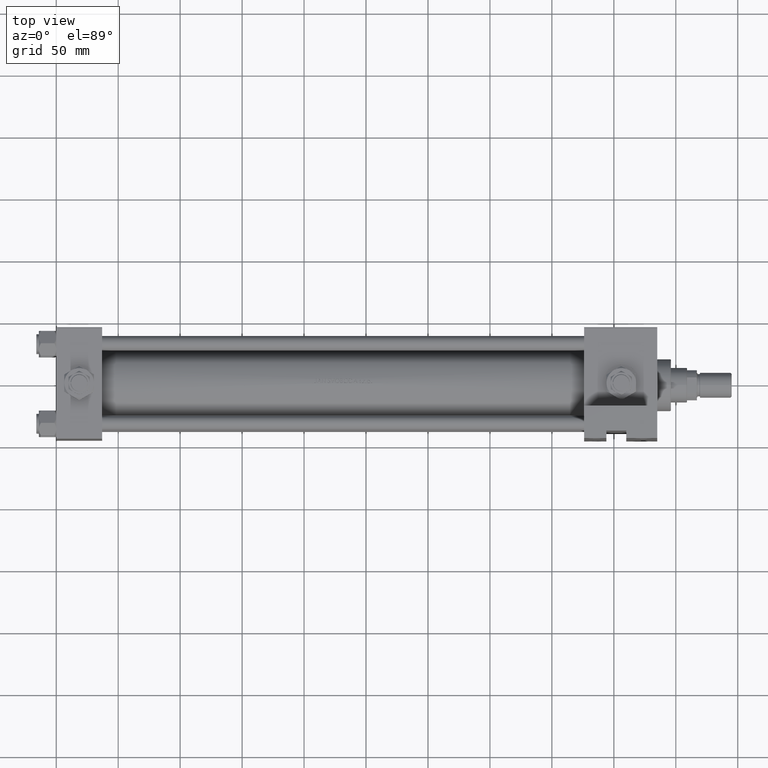
[diagram: clean part render]
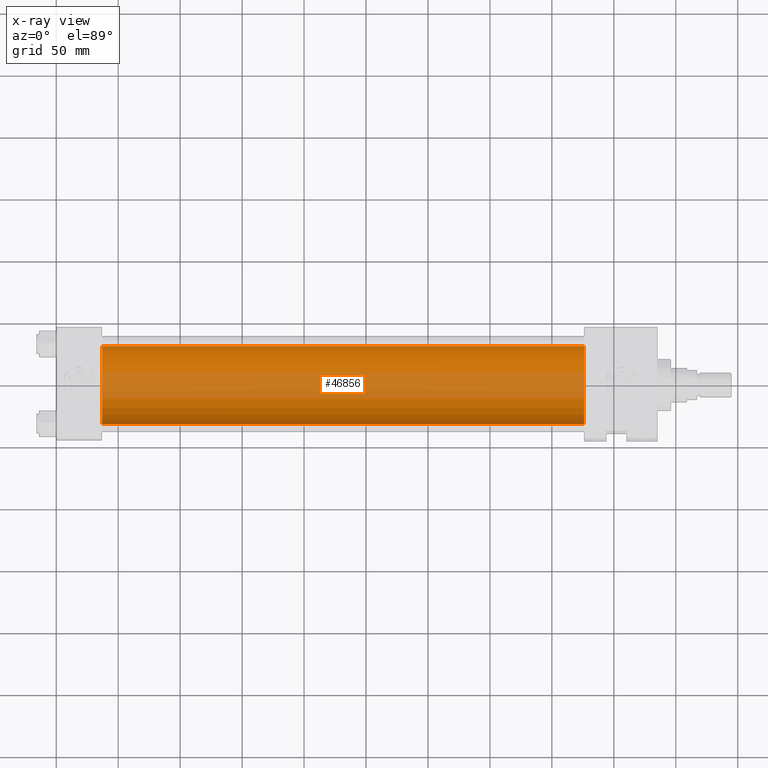
[diagram: x-ray — body ghosted, one internal face saturated and labeled with its STEP entity id]
A machine part, top view, then the same camera in x-ray: the body is ghosted and one INTERNAL B-rep face — a face not visible from any outside direction — is saturated and labeled: STEP entity #46856.
In plain terms, the highlighted cylindrical surface (partial cylindrical patch) has radius 31.5 mm, axis along (-1, -0, 0).
Its self-contained STEP definition (entity closure, byte-faithful):
#881 = EDGE_CURVE ( 'NONE', #21066, #12275, #8710, .T. ) ;
#3938 = DIRECTION ( 'NONE',  ( 0.000000000000000000, 0.000000000000000000, -1.000000000000000000 ) ) ;
#4906 = DIRECTION ( 'NONE',  ( -1.000000000000000000, -0.000000000000000000, -0.000000000000000000 ) ) ;
#5948 = AXIS2_PLACEMENT_3D ( 'NONE', #11804, #31841, #3938 ) ;
#6396 = VERTEX_POINT ( 'NONE', #46954 ) ;
#8710 = LINE ( 'NONE', #36865, #46939 ) ;
#11804 = CARTESIAN_POINT ( 'NONE',  ( 37.00000000000000000, 0.000000000000000000, -1.000000000000007772 ) ) ;
#12275 = VERTEX_POINT ( 'NONE', #27540 ) ;
#13008 = CARTESIAN_POINT ( 'NONE',  ( 426.0000000000000000, 3.857637417314162689E-15, -32.50000000000000711 ) ) ;
#14086 = EDGE_CURVE ( 'NONE', #45300, #21066, #26274, .T. ) ;
#17759 = ORIENTED_EDGE ( 'NONE', *, *, #881, .T. ) ;
#21066 = VERTEX_POINT ( 'NONE', #22783 ) ;
#21306 = EDGE_CURVE ( 'NONE', #6396, #12275, #35133, .T. ) ;
#21443 = ORIENTED_EDGE ( 'NONE', *, *, #14086, .T. ) ;
#22783 = CARTESIAN_POINT ( 'NONE',  ( 426.0000000000000000, 0.000000000000000000, 30.49999999999999289 ) ) ;
#24177 = DIRECTION ( 'NONE',  ( 0.000000000000000000, 0.000000000000000000, 1.000000000000000000 ) ) ;
#24930 = CARTESIAN_POINT ( 'NONE',  ( 426.0000000000000000, 0.000000000000000000, -1.000000000000007772 ) ) ;
#25161 = LINE ( 'NONE', #42745, #27486 ) ;
#25441 = AXIS2_PLACEMENT_3D ( 'NONE', #47378, #35715, #35468 ) ;
#26274 = CIRCLE ( 'NONE', #25441, 31.50000000000000000 ) ;
#27486 = VECTOR ( 'NONE', #35147, 1000.000000000000000 ) ;
#27540 = CARTESIAN_POINT ( 'NONE',  ( 37.00000000000000000, 0.000000000000000000, 30.49999999999999289 ) ) ;
#28001 = CYLINDRICAL_SURFACE ( 'NONE', #41283, 31.50000000000000000 ) ;
#31520 = ORIENTED_EDGE ( 'NONE', *, *, #48759, .F. ) ;
#31841 = DIRECTION ( 'NONE',  ( 1.000000000000000000, 0.000000000000000000, 0.000000000000000000 ) ) ;
#34128 = ORIENTED_EDGE ( 'NONE', *, *, #21306, .F. ) ;
#35133 = CIRCLE ( 'NONE', #5948, 31.50000000000000000 ) ;
#35147 = DIRECTION ( 'NONE',  ( -1.000000000000000000, -0.000000000000000000, -0.000000000000000000 ) ) ;
#35468 = DIRECTION ( 'NONE',  ( 0.000000000000000000, 0.000000000000000000, -1.000000000000000000 ) ) ;
#35715 = DIRECTION ( 'NONE',  ( 1.000000000000000000, 0.000000000000000000, 0.000000000000000000 ) ) ;
#36583 = DIRECTION ( 'NONE',  ( -1.000000000000000000, -0.000000000000000000, -0.000000000000000000 ) ) ;
#36865 = CARTESIAN_POINT ( 'NONE',  ( 426.0000000000000000, 0.000000000000000000, 30.49999999999999289 ) ) ;
#41206 = EDGE_LOOP ( 'NONE', ( #31520, #21443, #17759, #34128 ) ) ;
#41283 = AXIS2_PLACEMENT_3D ( 'NONE', #24930, #36583, #24177 ) ;
#42745 = CARTESIAN_POINT ( 'NONE',  ( 426.0000000000000000, 3.857637417314162689E-15, -32.50000000000000711 ) ) ;
#43698 = FACE_OUTER_BOUND ( 'NONE', #41206, .T. ) ;
#45300 = VERTEX_POINT ( 'NONE', #13008 ) ;
#46856 = ADVANCED_FACE ( 'NONE', ( #43698 ), #28001, .F. ) ;
#46939 = VECTOR ( 'NONE', #4906, 1000.000000000000000 ) ;
#46954 = CARTESIAN_POINT ( 'NONE',  ( 37.00000000000000000, 3.857637417314162689E-15, -32.50000000000000711 ) ) ;
#47378 = CARTESIAN_POINT ( 'NONE',  ( 426.0000000000000000, 0.000000000000000000, -1.000000000000007772 ) ) ;
#48759 = EDGE_CURVE ( 'NONE', #45300, #6396, #25161, .T. ) ;